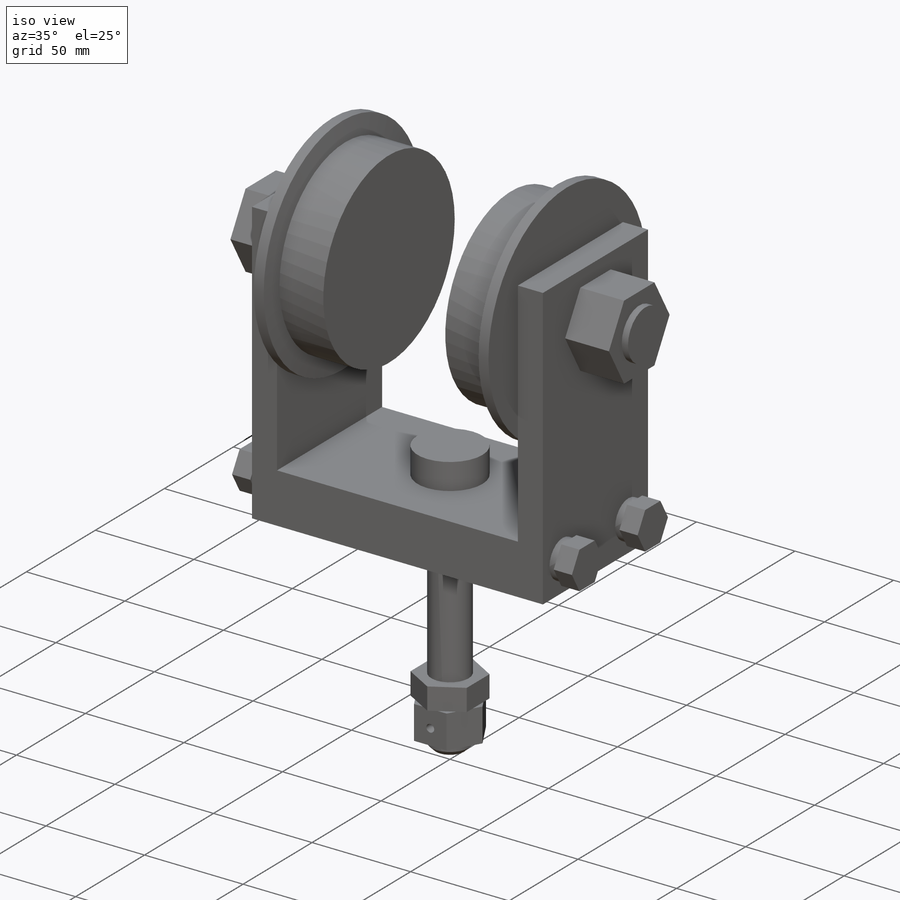
[diagram: iso view]
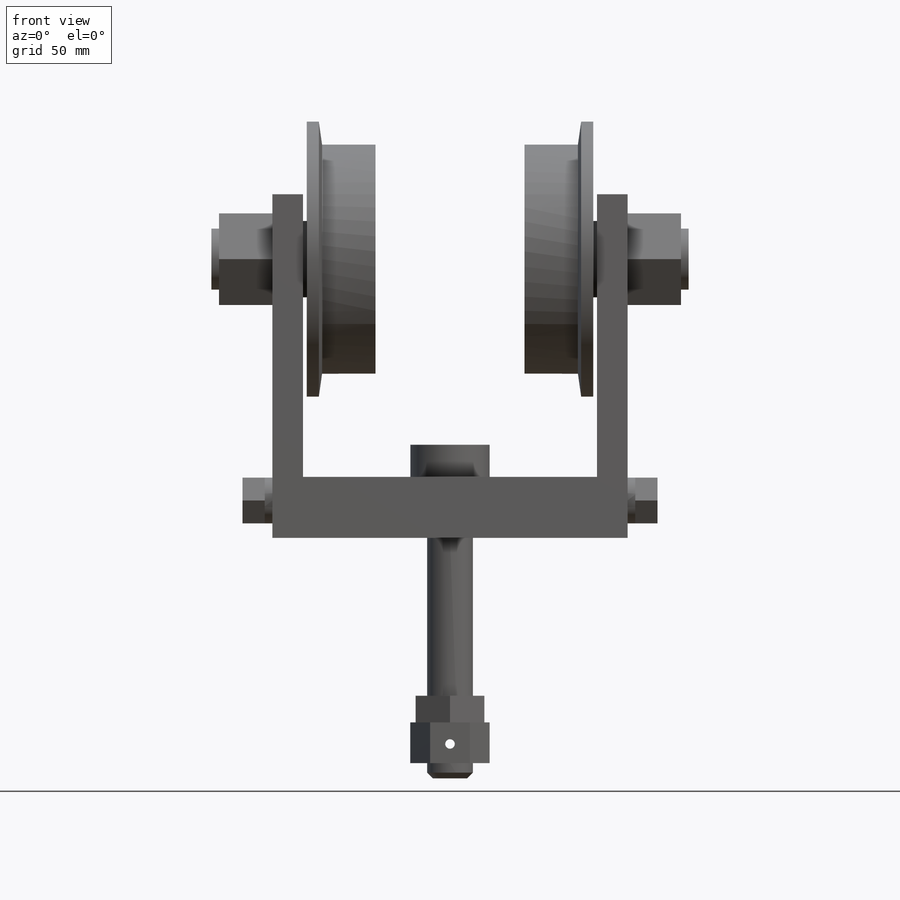
[diagram: front view]
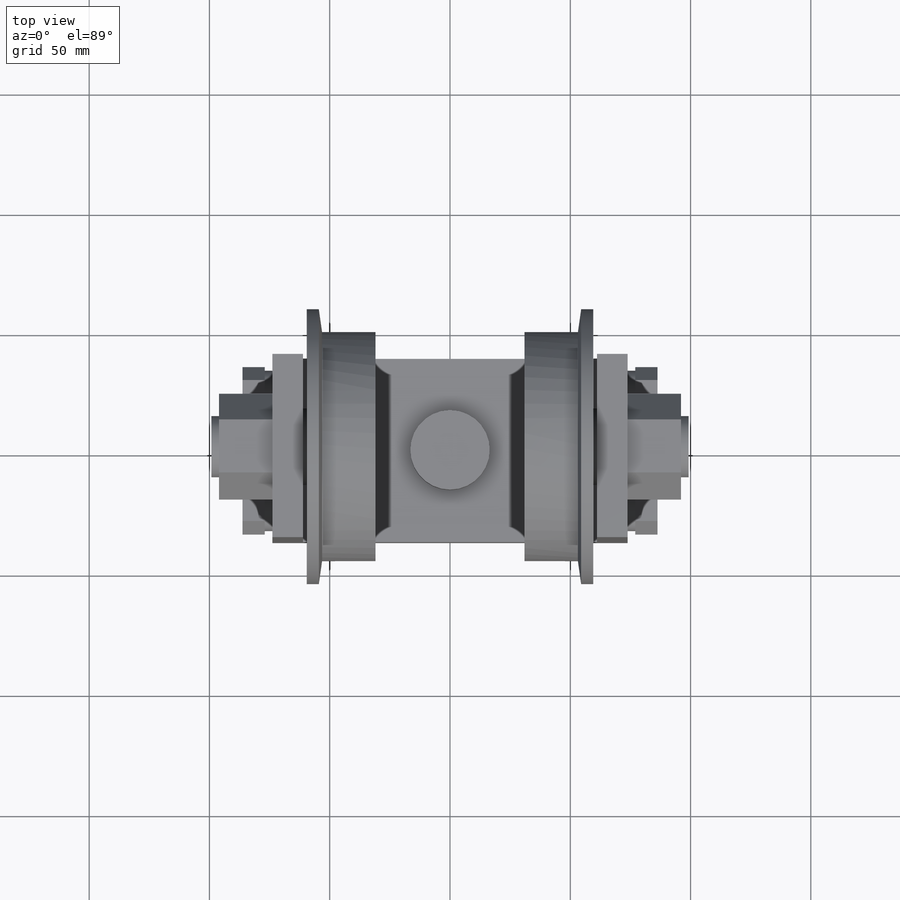
[diagram: top view]
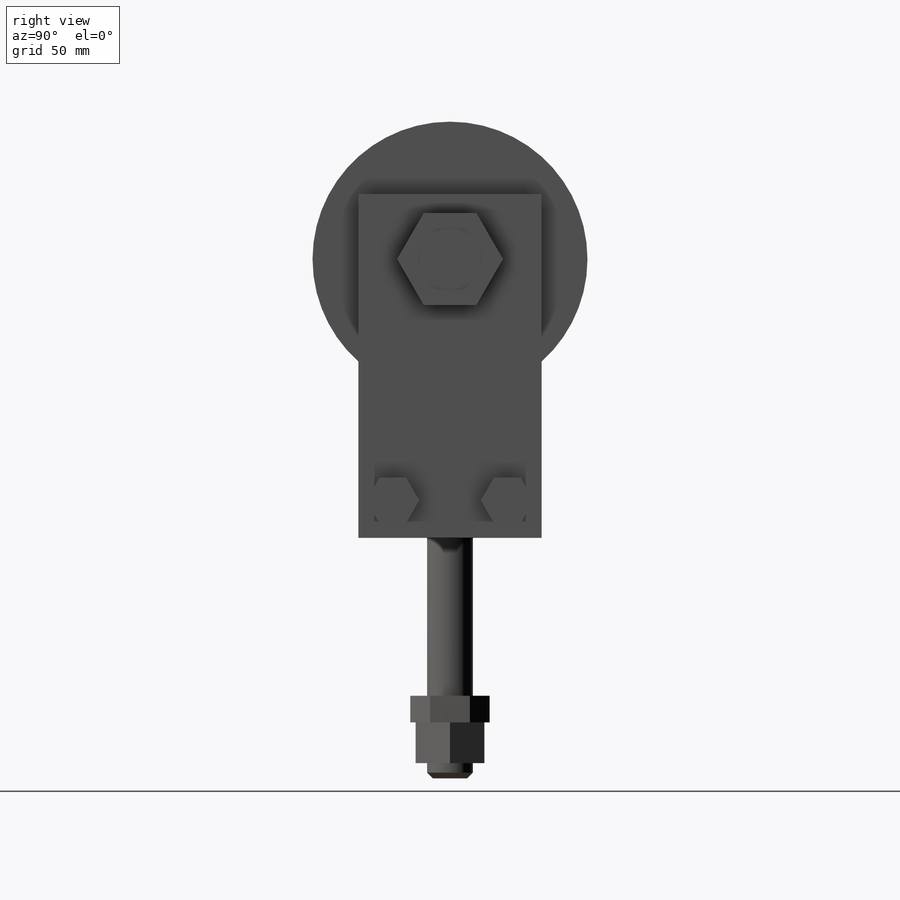
[diagram: right view]
SOLIDWORKS PART (.sldprt)
format: sldprt  version: not decoded by parser v0  size: 642,048 bytes
history: native  units: mm
features: sketch x14, extrude x12, plane x10, mirror x3, material x1, chamfer x1, revolve x1, cut_extrude x1 (+11 scaffold rows collapsed)
feature tree (54):
  scaffold x11  (default folders/planes/origin — collapsed)
  material  "Material <not specified>"
  plane  "Z PLANE"  Offset=0mm
  plane  "YOKE BOTTOM"  Offset=0mm
  plane  "X PLANE"  Offset=0mm
  sketch  "YOKE CROSS SECTION"  dims[D1=25.4mm D2=76.2mm]
  plane  "1/2 YOKE LENGTH (A)"  Offset=61.11875mm
  extrude  "YOKE"  [1 undecoded]
  sketch  "SIDEPLATE PROFILE"  dims[D1=142.875mm]
  plane  "WHEEL HEIGHT"  Offset=115.8875mm
  plane  "SCREW LOCATION X"  Offset=23.8125mm
  plane  "SCREW LOCATION Y"  Offset=15.563196mm
  extrude  "SIDEPLATE"  Depth=12.7mm
  sketch  "WHEEL PIN NUT PROFILE"  dims[D1=38.1mm]
  extrude  "WHEEL PIN NUT"  Depth=22.225mm
  sketch  "WHEEL PIN PROJECTION PROFILE"  dims[D1=25.4mm]
  extrude  "WHEEL PIN PROJECTION"  Depth=3.175mm
  sketch  "LOCKNUTS PROFILE"  dims[D1=19.05mm]
  extrude  "LOCKNUTS"  Depth=3.175mm
  sketch  "SCREWS PROFILE"  dims[D1=19.05mm]
  extrude  "SCREWS"  Depth=9.2456mm
  sketch  "PROFILE"  dims[D1=32.9946mm]
  extrude  "KING BOLT HEAD"  Depth=13.3096mm
  mirror  "Mirror1"
  mirror  "Mirror5"
  plane  "TOP OF NUT"  Offset=65.589601mm
  sketch  "DIA."  dims[D1=19.05mm]
  extrude  "KING BOLT"  [1 undecoded]
  sketch  "KING BOLT JAN NUT PROFILE"  dims[D1=28.575mm]
  extrude  "KING BOLT JAM NUT"  Depth=11.1125mm
  sketch  "KING BOLT NUT PROFILE"  dims[c1.D1=28.575mm c1.D2=44.45mm c2.D1=0.0mm]
  extrude  "KING BOLT NUT"  Depth=16.891mm
  sketch  "Sketch5"
  extrude  "EXTENDED KING BOLT"  Depth=6.35mm
  chamfer  "Chamfer1"  Distance=2.38125mm Angle=45deg
  plane  "MOUNTING REF PLANE"  Offset=34.925mm
  sketch  "Sketch7"  dims[c1.D1=88.9mm c1.D2=88.9mm c1.D6=88.9mm c2.D1=88.9mm c2.D2=41.275mm c2.D3=~44.802055mm c2.D4=47.625mm c2.D5=57.15mm c2.D6=~7.10417mm c2.D7=7.9375mm c2.D8=30.1625mm c3.D3=1.5875mm c3.D1=~44.802055mm c4.D3=~1.816747mm c4.D4=~5.51667mm c4.D5=~9.561384mm c4.D6=22.225mm c4.D2=~30.391747mm c5.D3=~8.166747mm c5.D4=~8.166747mm c5.D5=41.275mm c5.D6=~1.816747mm c5.D7=~5.51667mm c5.D8=57.15mm c5.D9=15.875mm c5.D1=15.875mm c5.D2=30.1625mm c6.D3=~44.802055mm c6.D1=15.875mm c6.D2=30.1625mm c7.D3=47.625mm c7.D4=22.225mm c7.D5=~23.563651mm c7.D6=9.525mm c7.D7=28.575mm c7.D8=1.5875mm c8.D6=57.15mm c8.D7=1.5875mm]
  revolve  "WHEEL"  Angle=360deg
  mirror  "Mirror6"
  sketch  "Sketch8"  dims[D2=~3.96875mm D1=7.9375mm]
  cut_extrude  "COTTER PIN HOLE"  [1 undecoded]
  sketch  "Sketch9"  dims[D1=50.8mm D2=60.325mm]
  extrude  "SPACER"  Depth=12.7mm
  plane  "TREAD OF TRACK"  Offset=68.2625mm
decode coverage: 25 of 32 modeling features carry decoded parameters
note: ~ marks probable driven/reference dimensions
note: 3 parameter values undecoded
summary: no parameter record found for 3 features
note: suppression state not decoded; provenance and decode notes live in map.json
